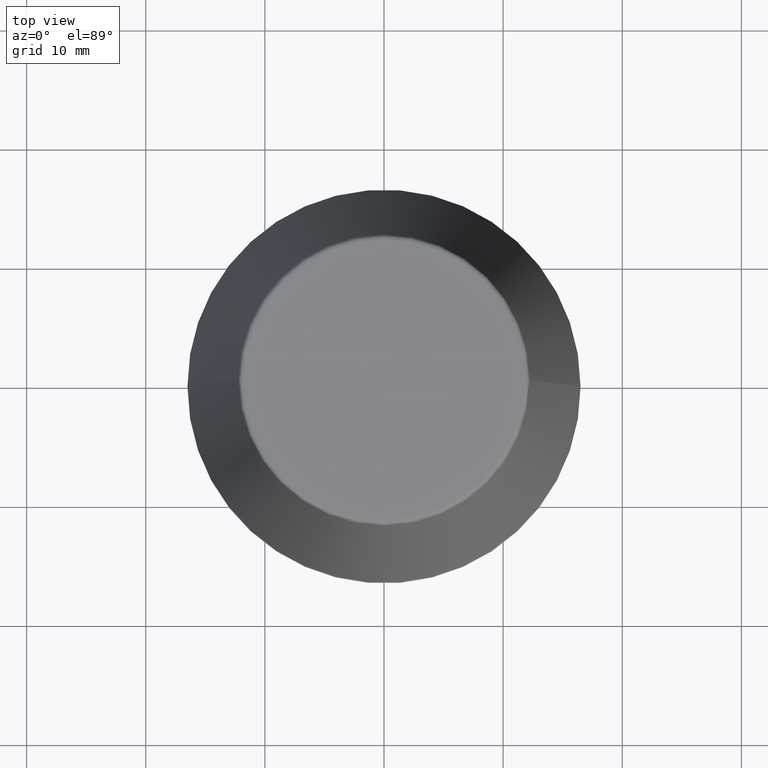
[diagram: clean part render]
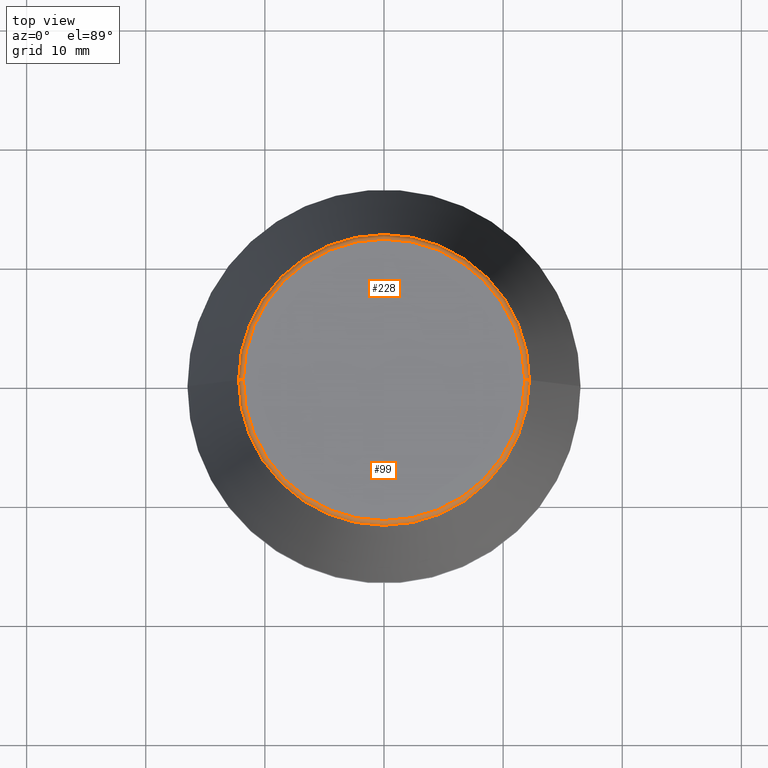
[diagram: same view with one multi-face feature highlighted, each face labeled with its STEP entity id]
A machine part, top view. The highlighted faces form ONE feature: a constant-radius fillet chain: 2 tangent blend faces with common blend radius 0.4 mm. The faces share edges in the B-rep.
Their STEP definitions:
[1] entity #99 (Torus):
#3 = CARTESIAN_POINT ( 'NONE',  ( 11.80989888411031400, 0.0000000000000000000, 39.60000000000000100 ) ) ;
#6 = CARTESIAN_POINT ( 'NONE',  ( 0.0000000000000000000, 0.0000000000000000000, 39.65566924038402900 ) ) ;
#11 = CARTESIAN_POINT ( 'NONE',  ( 0.0000000000000000000, 0.0000000000000000000, 40.00000000000000700 ) ) ;
#16 = ORIENTED_EDGE ( 'NONE', *, *, #345, .F. ) ;
#23 = DIRECTION ( 'NONE',  ( 1.000000000000000000, 0.0000000000000000000, 0.0000000000000000000 ) ) ;
#28 = CIRCLE ( 'NONE', #231, 12.20600611160694300 ) ;
#29 = EDGE_CURVE ( 'NONE', #351, #325, #173, .T. ) ;
#36 = DIRECTION ( 'NONE',  ( 0.0000000000000000000, -1.000000000000000000, 0.0000000000000000000 ) ) ;
#50 = AXIS2_PLACEMENT_3D ( 'NONE', #215, #143, #316 ) ;
#98 = CIRCLE ( 'NONE', #50, 0.4000000000000028000 ) ;
#99 = ADVANCED_FACE ( 'NONE', ( #103 ), #327, .T. ) ;
#103 = FACE_OUTER_BOUND ( 'NONE', #223, .T. ) ;
#143 = DIRECTION ( 'NONE',  ( 1.224646799147353200E-016, 1.000000000000000000, 0.0000000000000000000 ) ) ;
#148 = AXIS2_PLACEMENT_3D ( 'NONE', #3, #36, #181 ) ;
#173 = CIRCLE ( 'NONE', #241, 11.80989888411031400 ) ;
#181 = DIRECTION ( 'NONE',  ( 0.0000000000000000000, 0.0000000000000000000, -1.000000000000000000 ) ) ;
#182 = CARTESIAN_POINT ( 'NONE',  ( -11.80989888411031400, 1.470550059081603400E-015, 40.00000000000000700 ) ) ;
#188 = CIRCLE ( 'NONE', #148, 0.4000000000000045200 ) ;
#191 = ORIENTED_EDGE ( 'NONE', *, *, #225, .T. ) ;
#212 = CARTESIAN_POINT ( 'NONE',  ( 12.20600611160694300, 1.757755848304969800E-015, 39.65566924038402900 ) ) ;
#215 = CARTESIAN_POINT ( 'NONE',  ( -11.80989888411031400, 1.446295486667959300E-015, 39.60000000000000100 ) ) ;
#216 = DIRECTION ( 'NONE',  ( 1.000000000000000000, 0.0000000000000000000, 0.0000000000000000000 ) ) ;
#218 = ORIENTED_EDGE ( 'NONE', *, *, #29, .F. ) ;
#222 = ORIENTED_EDGE ( 'NONE', *, *, #280, .T. ) ;
#223 = EDGE_LOOP ( 'NONE', ( #16, #191, #222, #218 ) ) ;
#225 = EDGE_CURVE ( 'NONE', #292, #362, #28, .T. ) ;
#227 = DIRECTION ( 'NONE',  ( 1.000000000000000000, 0.0000000000000000000, 0.0000000000000000000 ) ) ;
#231 = AXIS2_PLACEMENT_3D ( 'NONE', #6, #294, #216 ) ;
#241 = AXIS2_PLACEMENT_3D ( 'NONE', #11, #263, #23 ) ;
#249 = CARTESIAN_POINT ( 'NONE',  ( 0.0000000000000000000, 0.0000000000000000000, 39.60000000000000100 ) ) ;
#261 = DIRECTION ( 'NONE',  ( -0.0000000000000000000, -0.0000000000000000000, 1.000000000000000000 ) ) ;
#263 = DIRECTION ( 'NONE',  ( -0.0000000000000000000, -0.0000000000000000000, 1.000000000000000000 ) ) ;
#280 = EDGE_CURVE ( 'NONE', #362, #325, #188, .T. ) ;
#292 = VERTEX_POINT ( 'NONE', #307 ) ;
#294 = DIRECTION ( 'NONE',  ( -0.0000000000000000000, -0.0000000000000000000, 1.000000000000000000 ) ) ;
#307 = CARTESIAN_POINT ( 'NONE',  ( -12.20600611160694300, 0.0000000000000000000, 39.65566924038402900 ) ) ;
#311 = CARTESIAN_POINT ( 'NONE',  ( 11.80989888411031400, 0.0000000000000000000, 40.00000000000000700 ) ) ;
#316 = DIRECTION ( 'NONE',  ( -1.000000000000000000, 1.224646799147352500E-016, 0.0000000000000000000 ) ) ;
#325 = VERTEX_POINT ( 'NONE', #311 ) ;
#327 = TOROIDAL_SURFACE ( 'NONE', #335, 11.80989888411031400, 0.4000000000000026900 ) ;
#335 = AXIS2_PLACEMENT_3D ( 'NONE', #249, #261, #227 ) ;
#345 = EDGE_CURVE ( 'NONE', #292, #351, #98, .T. ) ;
#351 = VERTEX_POINT ( 'NONE', #182 ) ;
#362 = VERTEX_POINT ( 'NONE', #212 ) ;
[2] entity #228 (Torus):
#3 = CARTESIAN_POINT ( 'NONE',  ( 11.80989888411031400, 0.0000000000000000000, 39.60000000000000100 ) ) ;
#7 = DIRECTION ( 'NONE',  ( 1.000000000000000000, 0.0000000000000000000, 0.0000000000000000000 ) ) ;
#27 = DIRECTION ( 'NONE',  ( -0.0000000000000000000, -0.0000000000000000000, 1.000000000000000000 ) ) ;
#35 = CARTESIAN_POINT ( 'NONE',  ( 0.0000000000000000000, 0.0000000000000000000, 39.65566924038402900 ) ) ;
#36 = DIRECTION ( 'NONE',  ( 0.0000000000000000000, -1.000000000000000000, 0.0000000000000000000 ) ) ;
#49 = CIRCLE ( 'NONE', #160, 12.20600611160694300 ) ;
#50 = AXIS2_PLACEMENT_3D ( 'NONE', #215, #143, #316 ) ;
#51 = CARTESIAN_POINT ( 'NONE',  ( 0.0000000000000000000, 0.0000000000000000000, 39.60000000000000100 ) ) ;
#54 = ORIENTED_EDGE ( 'NONE', *, *, #155, .F. ) ;
#84 = CIRCLE ( 'NONE', #205, 11.80989888411031400 ) ;
#93 = CARTESIAN_POINT ( 'NONE',  ( 0.0000000000000000000, 0.0000000000000000000, 40.00000000000000700 ) ) ;
#98 = CIRCLE ( 'NONE', #50, 0.4000000000000028000 ) ;
#143 = DIRECTION ( 'NONE',  ( 1.224646799147353200E-016, 1.000000000000000000, 0.0000000000000000000 ) ) ;
#148 = AXIS2_PLACEMENT_3D ( 'NONE', #3, #36, #181 ) ;
#153 = DIRECTION ( 'NONE',  ( -0.0000000000000000000, -0.0000000000000000000, 1.000000000000000000 ) ) ;
#155 = EDGE_CURVE ( 'NONE', #325, #351, #84, .T. ) ;
#160 = AXIS2_PLACEMENT_3D ( 'NONE', #35, #363, #220 ) ;
#165 = AXIS2_PLACEMENT_3D ( 'NONE', #51, #27, #7 ) ;
#181 = DIRECTION ( 'NONE',  ( 0.0000000000000000000, 0.0000000000000000000, -1.000000000000000000 ) ) ;
#182 = CARTESIAN_POINT ( 'NONE',  ( -11.80989888411031400, 1.470550059081603400E-015, 40.00000000000000700 ) ) ;
#188 = CIRCLE ( 'NONE', #148, 0.4000000000000045200 ) ;
#205 = AXIS2_PLACEMENT_3D ( 'NONE', #93, #153, #252 ) ;
#212 = CARTESIAN_POINT ( 'NONE',  ( 12.20600611160694300, 1.757755848304969800E-015, 39.65566924038402900 ) ) ;
#215 = CARTESIAN_POINT ( 'NONE',  ( -11.80989888411031400, 1.446295486667959300E-015, 39.60000000000000100 ) ) ;
#220 = DIRECTION ( 'NONE',  ( 1.000000000000000000, 0.0000000000000000000, 0.0000000000000000000 ) ) ;
#228 = ADVANCED_FACE ( 'NONE', ( #243 ), #239, .T. ) ;
#239 = TOROIDAL_SURFACE ( 'NONE', #165, 11.80989888411031400, 0.4000000000000026900 ) ;
#243 = FACE_OUTER_BOUND ( 'NONE', #366, .T. ) ;
#252 = DIRECTION ( 'NONE',  ( 1.000000000000000000, 0.0000000000000000000, 0.0000000000000000000 ) ) ;
#254 = EDGE_CURVE ( 'NONE', #362, #292, #49, .T. ) ;
#280 = EDGE_CURVE ( 'NONE', #362, #325, #188, .T. ) ;
#292 = VERTEX_POINT ( 'NONE', #307 ) ;
#301 = ORIENTED_EDGE ( 'NONE', *, *, #280, .F. ) ;
#307 = CARTESIAN_POINT ( 'NONE',  ( -12.20600611160694300, 0.0000000000000000000, 39.65566924038402900 ) ) ;
#311 = CARTESIAN_POINT ( 'NONE',  ( 11.80989888411031400, 0.0000000000000000000, 40.00000000000000700 ) ) ;
#316 = DIRECTION ( 'NONE',  ( -1.000000000000000000, 1.224646799147352500E-016, 0.0000000000000000000 ) ) ;
#325 = VERTEX_POINT ( 'NONE', #311 ) ;
#345 = EDGE_CURVE ( 'NONE', #292, #351, #98, .T. ) ;
#351 = VERTEX_POINT ( 'NONE', #182 ) ;
#362 = VERTEX_POINT ( 'NONE', #212 ) ;
#363 = DIRECTION ( 'NONE',  ( -0.0000000000000000000, -0.0000000000000000000, 1.000000000000000000 ) ) ;
#365 = ORIENTED_EDGE ( 'NONE', *, *, #254, .T. ) ;
#366 = EDGE_LOOP ( 'NONE', ( #365, #384, #54, #301 ) ) ;
#384 = ORIENTED_EDGE ( 'NONE', *, *, #345, .T. ) ;